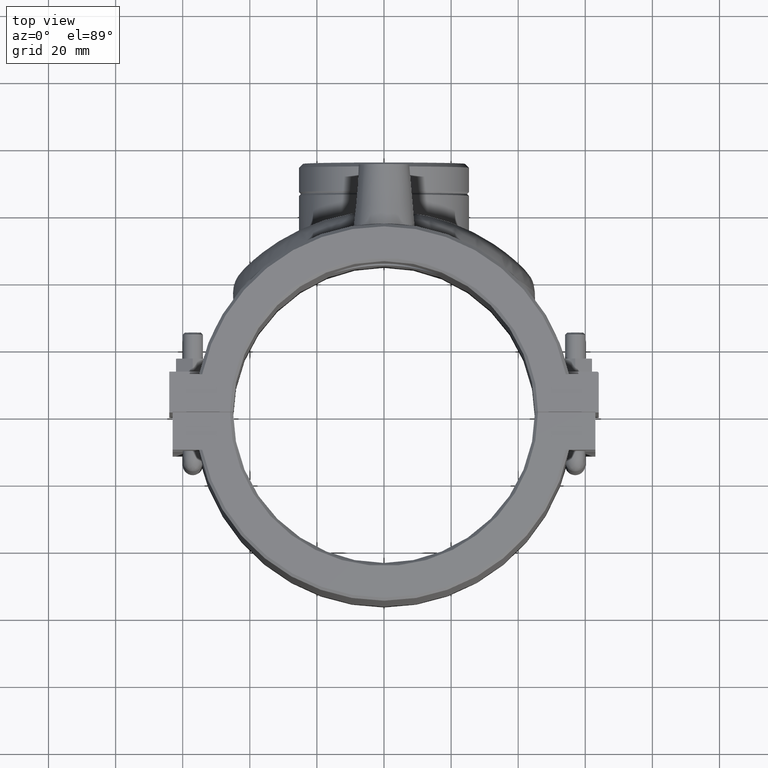
[diagram: clean part render]
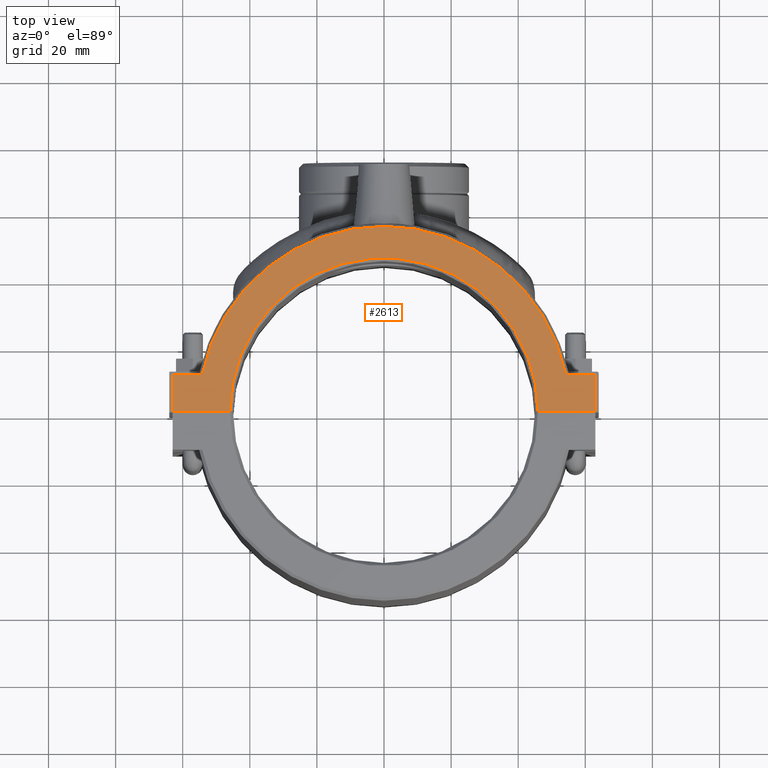
[diagram: same view with one face highlighted and labeled with its STEP entity id]
A machine part, top view. The second image highlights one B-rep face of the part: STEP entity #2613.
In plain terms, the highlighted planar face has unit normal (0, 0, 1).
Its self-contained STEP definition (entity closure, byte-faithful):
#314=FACE_OUTER_BOUND('',#500,.T.);
#500=EDGE_LOOP('',(#2177,#2178,#2179,#2180,#2181,#2182,#2183,#2184));
#607=LINE('',#3774,#806);
#612=LINE('',#3784,#811);
#657=LINE('',#4026,#856);
#660=LINE('',#4035,#859);
#715=LINE('',#5076,#914);
#735=LINE('',#5371,#934);
#806=VECTOR('',#2956,11.2);
#811=VECTOR('',#2965,8.80535081763146);
#856=VECTOR('',#3048,11.2);
#859=VECTOR('',#3053,8.80535081763146);
#914=VECTOR('',#3278,17.1000272331236);
#934=VECTOR('',#3346,17.1000272331236);
#1028=CIRCLE('',#2812,45.9);
#1030=CIRCLE('',#2815,55.35);
#1099=VERTEX_POINT('',#3771);
#1100=VERTEX_POINT('',#3773);
#1103=VERTEX_POINT('',#3783);
#1147=VERTEX_POINT('',#4023);
#1148=VERTEX_POINT('',#4025);
#1150=VERTEX_POINT('',#4031);
#1241=VERTEX_POINT('',#5072);
#1263=VERTEX_POINT('',#5364);
#1357=EDGE_CURVE('',#1100,#1099,#607,.T.);
#1362=EDGE_CURVE('',#1100,#1103,#612,.T.);
#1420=EDGE_CURVE('',#1148,#1147,#657,.T.);
#1424=EDGE_CURVE('',#1147,#1150,#660,.T.);
#1556=EDGE_CURVE('',#1099,#1241,#715,.T.);
#1593=EDGE_CURVE('',#1263,#1241,#1028,.T.);
#1595=EDGE_CURVE('',#1263,#1148,#735,.T.);
#1596=EDGE_CURVE('',#1103,#1150,#1030,.T.);
#2177=ORIENTED_EDGE('',*,*,#1593,.F.);
#2178=ORIENTED_EDGE('',*,*,#1595,.T.);
#2179=ORIENTED_EDGE('',*,*,#1420,.T.);
#2180=ORIENTED_EDGE('',*,*,#1424,.T.);
#2181=ORIENTED_EDGE('',*,*,#1596,.F.);
#2182=ORIENTED_EDGE('',*,*,#1362,.F.);
#2183=ORIENTED_EDGE('',*,*,#1357,.T.);
#2184=ORIENTED_EDGE('',*,*,#1556,.T.);
#2487=PLANE('',#2814);
#2613=ADVANCED_FACE('',(#314),#2487,.T.);
#2812=AXIS2_PLACEMENT_3D('',#5368,#3340,#3341);
#2814=AXIS2_PLACEMENT_3D('',#5370,#3344,#3345);
#2815=AXIS2_PLACEMENT_3D('',#5372,#3347,#3348);
#2956=DIRECTION('',(0.,-1.,0.));
#2965=DIRECTION('',(1.,0.,0.));
#3048=DIRECTION('',(0.,1.,0.));
#3053=DIRECTION('',(-1.,0.,0.));
#3278=DIRECTION('',(1.,-2.75352932694731E-19,0.));
#3340=DIRECTION('center_axis',(0.,0.,1.));
#3341=DIRECTION('ref_axis',(-1.,0.,0.));
#3344=DIRECTION('center_axis',(0.,0.,1.));
#3345=DIRECTION('ref_axis',(1.,0.,0.));
#3346=DIRECTION('',(1.,-2.75352932694731E-19,0.));
#3347=DIRECTION('center_axis',(0.,0.,-1.));
#3348=DIRECTION('ref_axis',(1.,0.,0.));
#3771=CARTESIAN_POINT('',(-63.,0.05,59.));
#3773=CARTESIAN_POINT('',(-63.,11.25,59.));
#3774=CARTESIAN_POINT('',(-63.,11.25,59.));
#3783=CARTESIAN_POINT('',(-54.1946491823686,11.25,59.));
#3784=CARTESIAN_POINT('',(-57.3981221495988,11.25,59.));
#4023=CARTESIAN_POINT('',(63.,11.25,59.));
#4025=CARTESIAN_POINT('',(63.,0.0499999999999989,59.));
#4026=CARTESIAN_POINT('',(63.,-11.25,59.));
#4031=CARTESIAN_POINT('',(54.1946491823686,11.25,59.));
#4035=CARTESIAN_POINT('',(63.,11.25,59.));
#5072=CARTESIAN_POINT('',(-45.8999727668764,0.05,59.));
#5076=CARTESIAN_POINT('',(1.6586374567119,0.05,59.));
#5364=CARTESIAN_POINT('',(45.8999727668764,0.05,59.));
#5368=CARTESIAN_POINT('Origin',(0.,0.,59.));
#5370=CARTESIAN_POINT('Origin',(-59.6827250865762,0.,59.));
#5371=CARTESIAN_POINT('',(1.6586374567119,0.05,59.));
#5372=CARTESIAN_POINT('Origin',(0.,0.,59.));